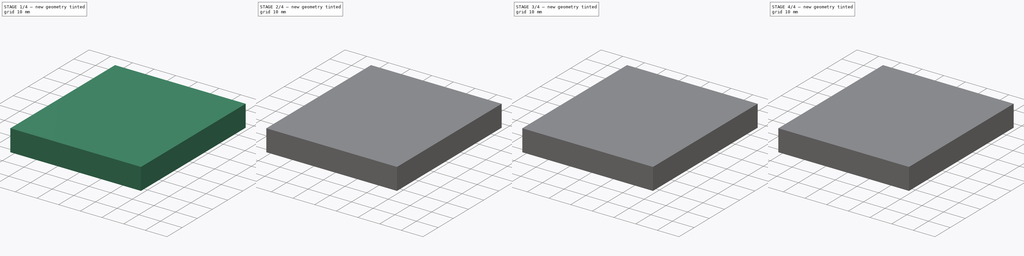
[diagram: build sequence overview — one tinted view per stage of 4, left to right]
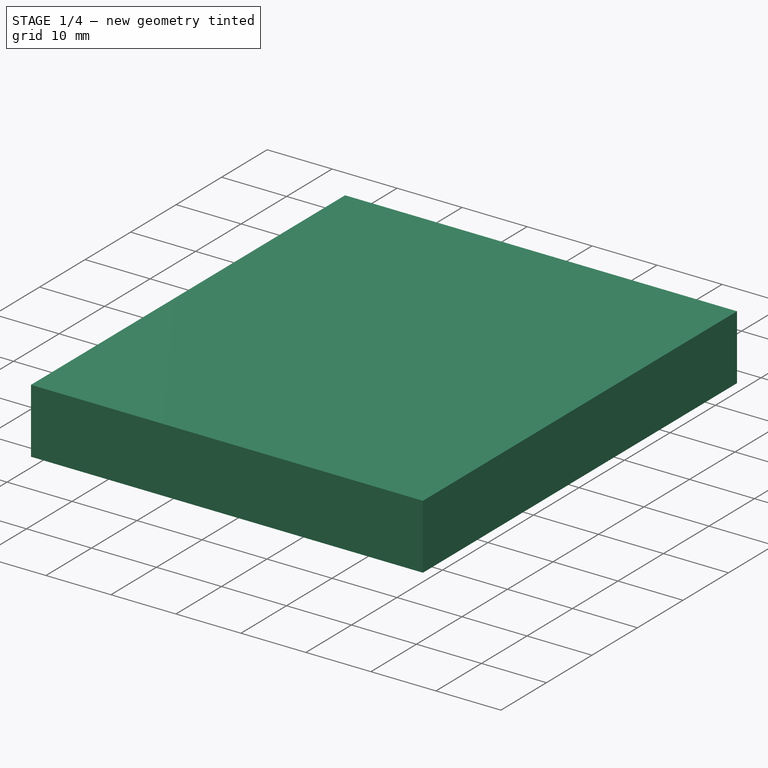
[diagram: stage 1 of 4 — iso view after this stage's code; geometry added in this stage tinted green]
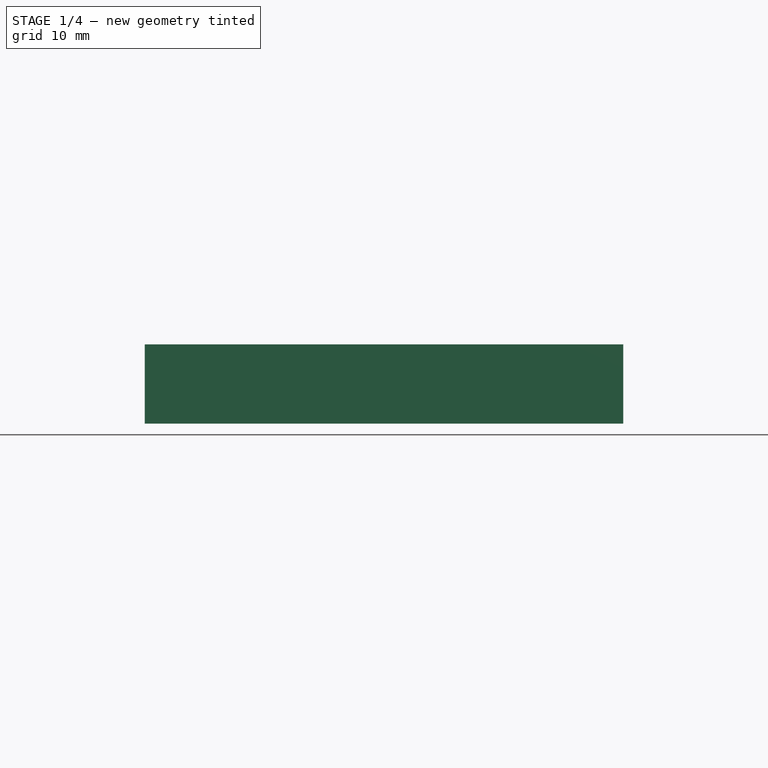
[diagram: stage 1 of 4 — front view after this stage's code; geometry added in this stage tinted green]
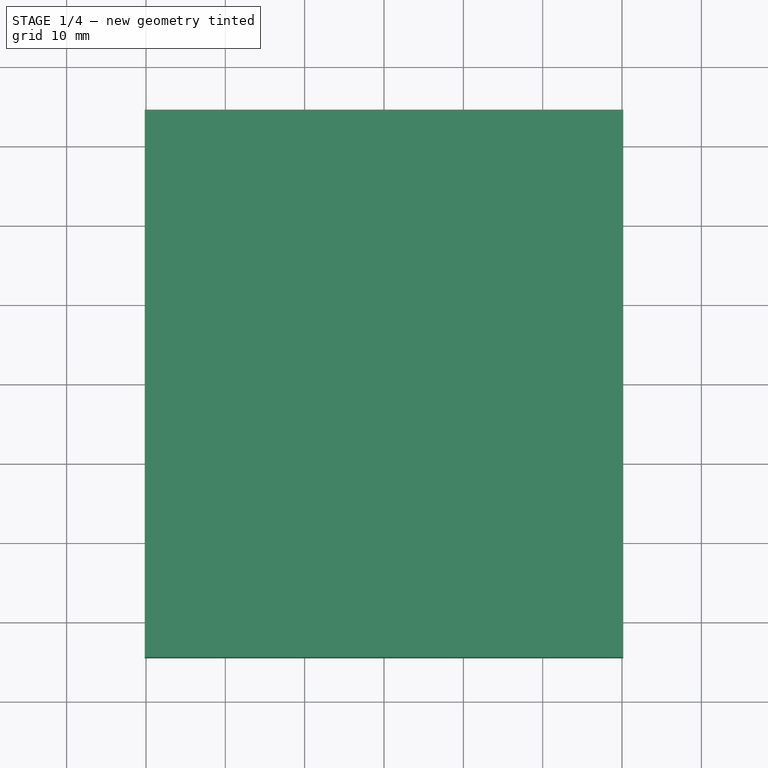
[diagram: stage 1 of 4 — top view after this stage's code; geometry added in this stage tinted green]
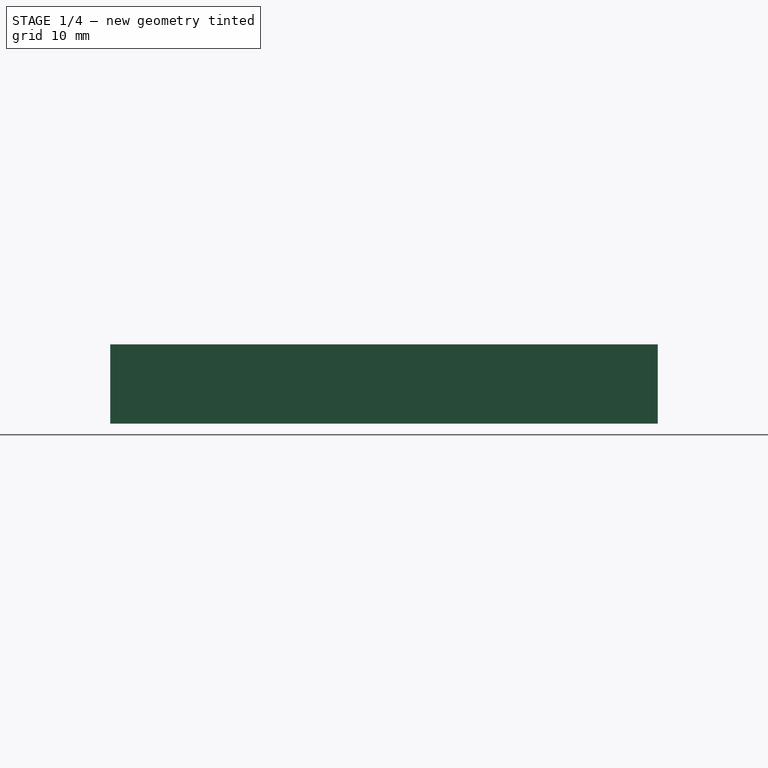
[diagram: stage 1 of 4 — right view after this stage's code; geometry added in this stage tinted green]
FCSTD DOCUMENT  (FreeCAD 0.20R29177 (Git))
Label: Wilkinson Divider
License: All rights reserved
LicenseURL: http://en.wikipedia.org/wiki/All_rights_reserved
objects: Part::Extrusion×12, Sketcher::SketchObject×10, Spreadsheet::Sheet×1, Part::Mirroring×1, Part::Cut×1
note: 24 computed .brp shape members not serialized (recipe doc carries the construction recipe); baked Part::Feature solids carry a one-line shape summary decoded from their .brp

FEATURE [Part::Extrusion] Extrude001  label="input trace"
  Base = -> Sketch001
  Dir = (0,0,1)
  DirMode = 2
  FaceMakerClass = Part::FaceMakerBullseye
  LengthFwd = 0.035
  LengthRev = 0
  Solid = true
  Symmetric = false
FEATURE [Part::Extrusion] Extrude010  label="port in"
  Base = -> Sketch008
  Dir = (0,0,1)
  DirMode = 2
  FaceMakerClass = Part::FaceMakerBullseye
  LengthFwd = 1.57
  LengthRev = 0
  Reversed = true
  Solid = true
  Symmetric = false
  expr: LengthFwd = <<params>>.substrate_height + 2 * 0.035
FEATURE [Sketcher::SketchObject] Sketch009  label="simbox sketch"
  FullyConstrained = true
  expr: Constraints[10] = <<params>>.output_trace_length_2 * 3
  expr: Constraints[9] = <<params>>.wilkinson_radius * 8
  sketch-geometry (4):
    g0: LineSegment StartX=-30.15 StartY=34.5048 StartZ=0 EndX=30.15 EndY=34.5048 EndZ=0
    g1: LineSegment StartX=30.15 StartY=34.5048 StartZ=0 EndX=30.15 EndY=-34.5048 EndZ=0
    g2: LineSegment StartX=30.15 StartY=-34.5048 StartZ=0 EndX=-30.15 EndY=-34.5048 EndZ=0
    g3: LineSegment StartX=-30.15 StartY=-34.5048 StartZ=0 EndX=-30.15 EndY=34.5048 EndZ=0
  constraints (11):
    c: Coincident(g0,g1)
    c: Coincident(g1,g2)
    c: Coincident(g2,g3)
    c: Coincident(g3,g0)
    c: Horizontal(g0)
    c: Horizontal(g2)
    c: Vertical(g1)
    c: Vertical(g3)
    c: Symmetric(g0,g1,g-1)
    c: Distance(g1,g0) = 69.0096
    c: Distance(g0) = 60.3
FEATURE [Part::Extrusion] Extrude011  label="simbox"
  Base = -> Sketch009
  Dir = (0,0,1)
  DirMode = 2
  FaceMakerClass = Part::FaceMakerBullseye
  LengthFwd = 10
  LengthRev = 0
  Solid = true
  Symmetric = true
FEATURE [Part::Extrusion] Extrude012  label="Et dumpbox"
  Base = -> Sketch005
  Dir = (0,0,1)
  DirMode = 2
  FaceMakerClass = Part::FaceMakerBullseye
  LengthFwd = 0.035
  LengthRev = 0
  Solid = true
  Symmetric = false
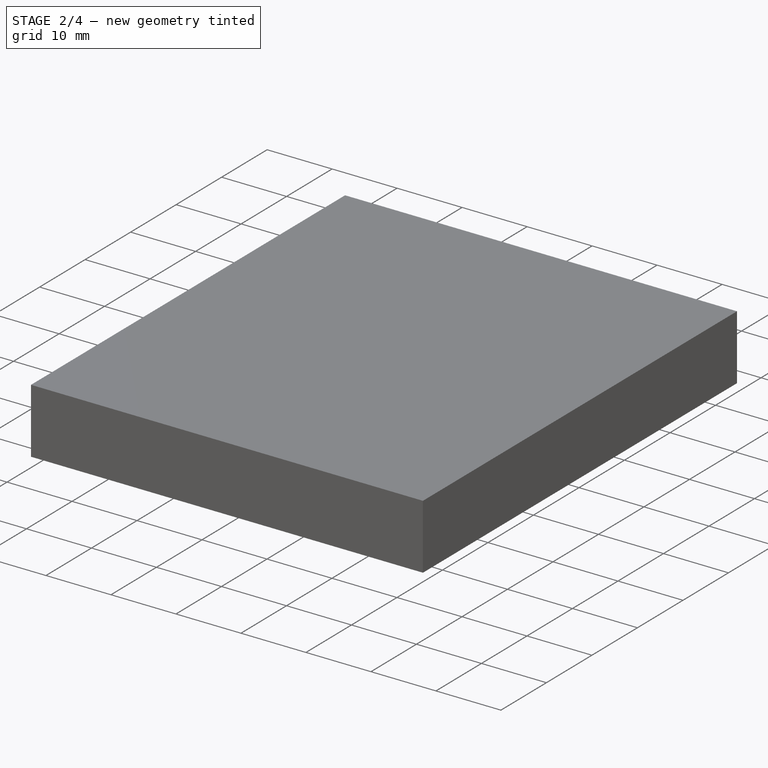
[diagram: stage 2 of 4 — iso view after this stage's code; geometry added in this stage tinted green]
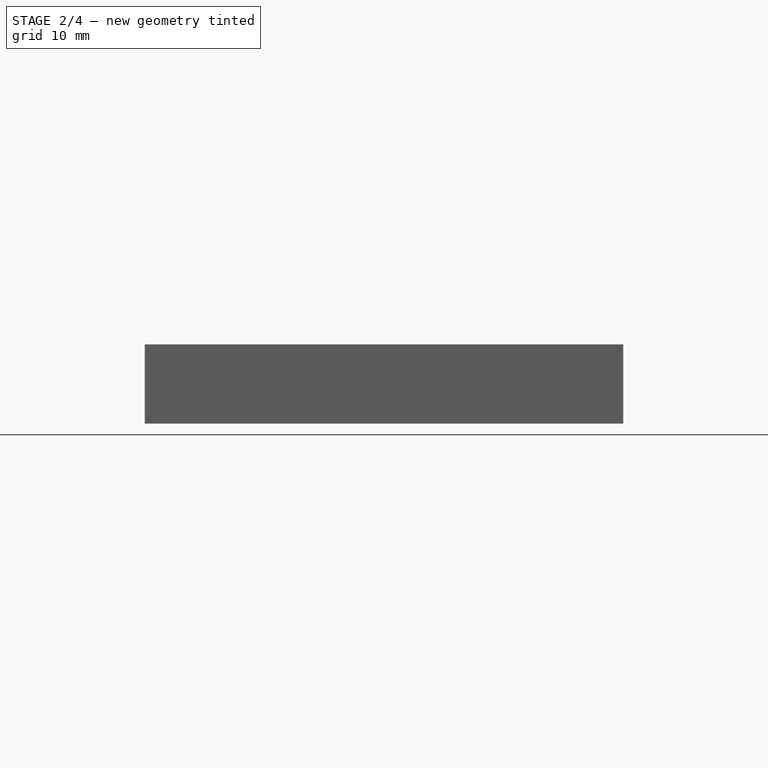
[diagram: stage 2 of 4 — front view after this stage's code; geometry added in this stage tinted green]
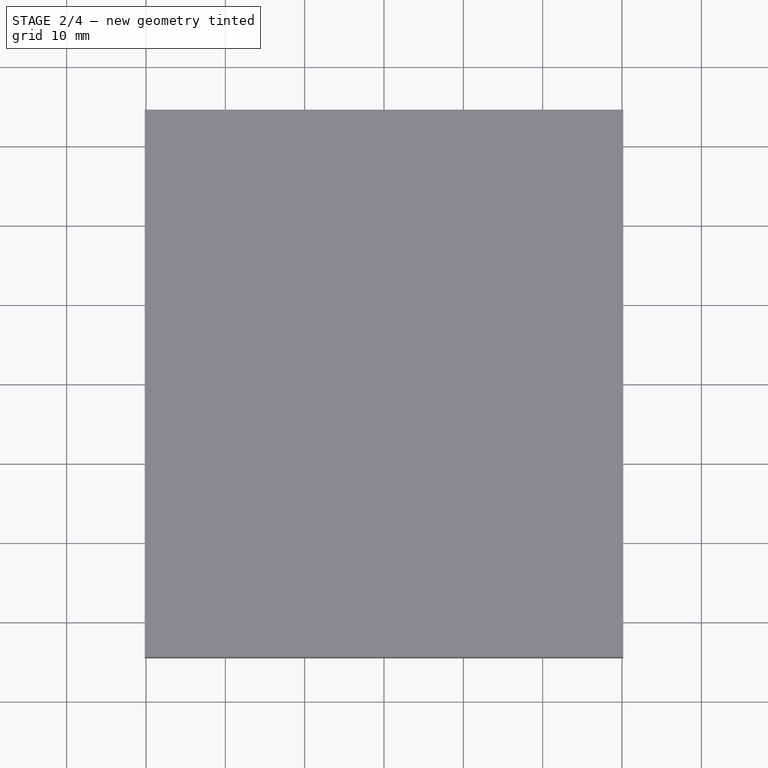
[diagram: stage 2 of 4 — top view after this stage's code; geometry added in this stage tinted green]
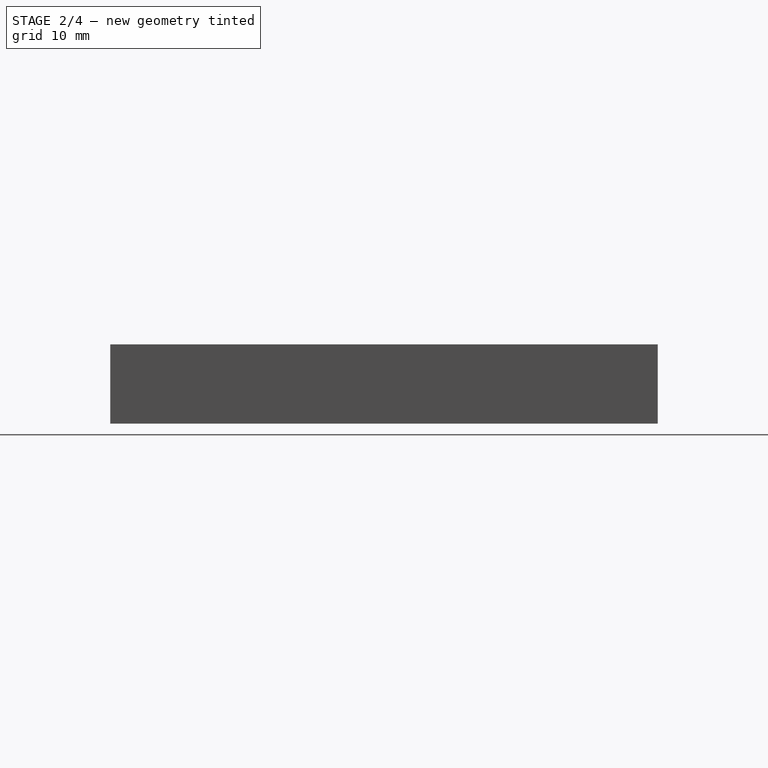
[diagram: stage 2 of 4 — right view after this stage's code; geometry added in this stage tinted green]
FEATURE [Part::Extrusion] Extrude003  label="output trace 1"
  Base = -> Sketch003
  Dir = (0,0,1)
  DirMode = 2
  FaceMakerClass = Part::FaceMakerBullseye
  LengthFwd = 0.035
  LengthRev = 0
  Solid = true
  Symmetric = false
FEATURE [Part::Mirroring] Part__Mirroring  label="output trace 2"
  Base = (0,0,0)
  Normal = (1,0,0)
  Source = -> Extrude003
FEATURE [Part::Extrusion] Extrude009  label="port out 2"
  Base = -> Sketch007
  Dir = (0,0,1)
  DirMode = 2
  FaceMakerClass = Part::FaceMakerBullseye
  LengthFwd = 1.57
  LengthRev = 0
  Reversed = true
  Solid = true
  Symmetric = false
  expr: LengthFwd = <<params>>.substrate_height + 2 * 0.035
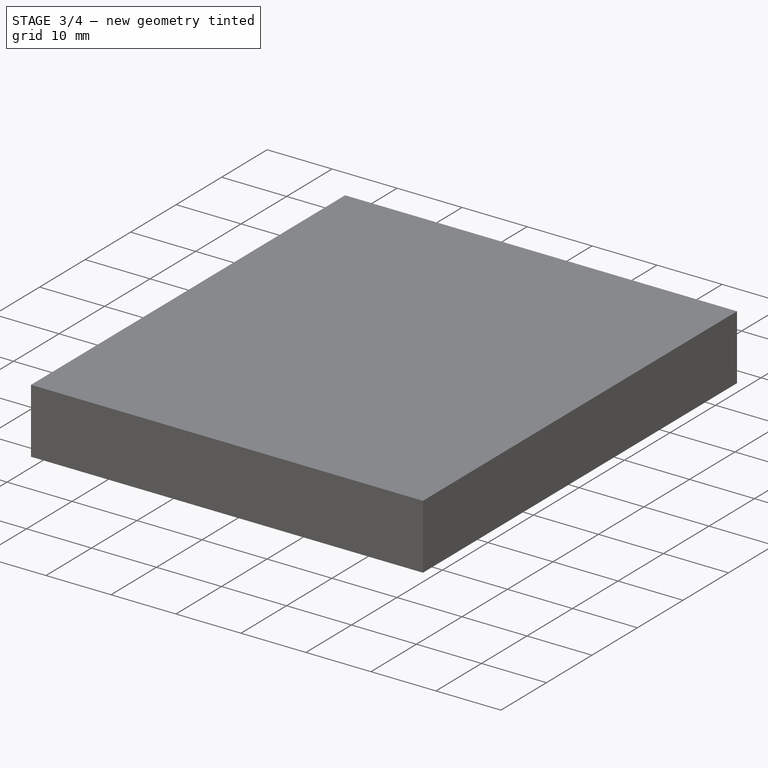
[diagram: stage 3 of 4 — iso view after this stage's code; geometry added in this stage tinted green]
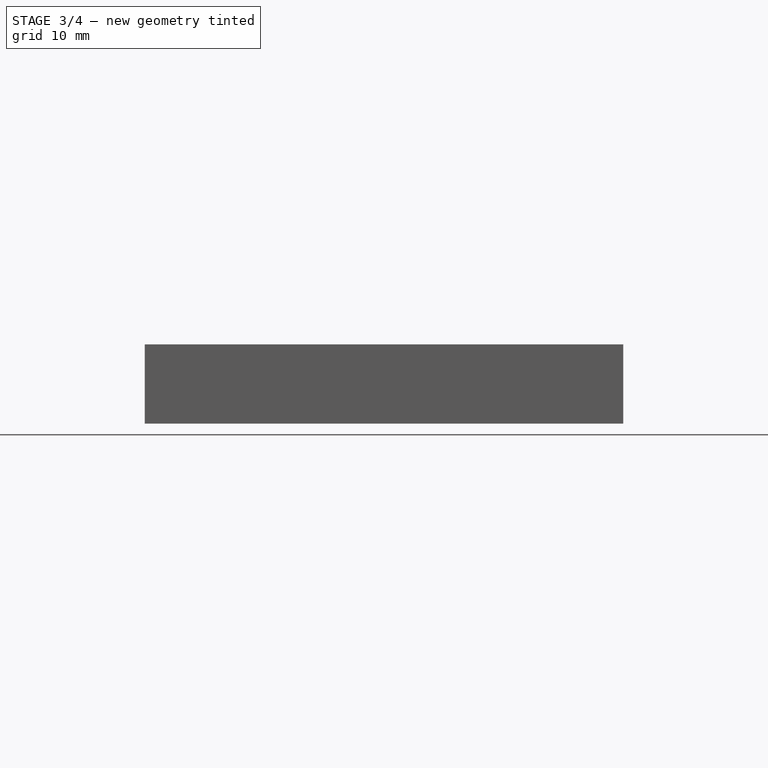
[diagram: stage 3 of 4 — front view after this stage's code; geometry added in this stage tinted green]
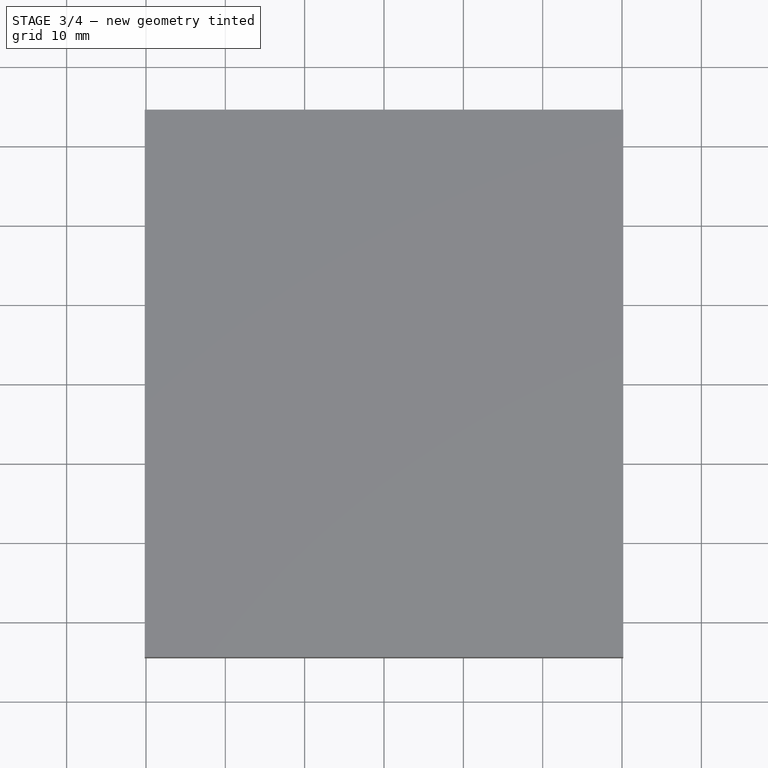
[diagram: stage 3 of 4 — top view after this stage's code; geometry added in this stage tinted green]
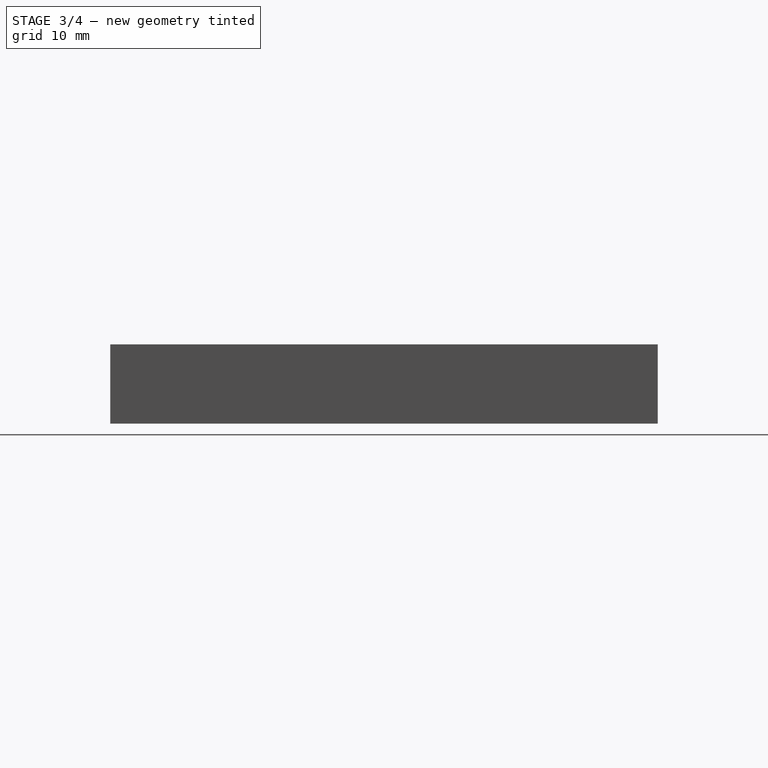
[diagram: stage 3 of 4 — right view after this stage's code; geometry added in this stage tinted green]
FEATURE [Sketcher::SketchObject] Sketch005  label="substrate sketch"
  FullyConstrained = true
  expr: Constraints[10] = <<params>>.wilkinson_radius + <<params>>.output_trace_length_1 + 10
  expr: Constraints[7] = <<params>>.wilkinson_radius + <<params>>.input_trace_length
  expr: Constraints[8] = <<params>>.output_trace_length_2 - <<params>>.resistor_width / 4
  sketch-geometry (4):
    g0: LineSegment StartX=-19.6 StartY=16.6262 StartZ=0 EndX=19.6 EndY=16.6262 EndZ=0
    g1: LineSegment StartX=19.6 StartY=16.6262 StartZ=0 EndX=19.6 EndY=-25.6262 EndZ=0
    g2: LineSegment StartX=19.6 StartY=-25.6262 StartZ=0 EndX=-19.6 EndY=-25.6262 EndZ=0
    g3: LineSegment StartX=-19.6 StartY=-25.6262 StartZ=0 EndX=-19.6 EndY=16.6262 EndZ=0
  constraints (11):
    c: Coincident(g0,g1)
    c: Coincident(g1,g2)
    c: Coincident(g2,g3)
    c: Coincident(g3,g0)
    c: Horizontal(g2)
    c: Vertical(g1)
    c: Vertical(g3)
    c: DistanceY(g-1,g0) = 16.6262
    c: DistanceX(g-2,g0) = 19.6
    c: Symmetric(g0,g0,g-2)
    c: DistanceY(g2,g-1) = 25.6262
FEATURE [Part::Extrusion] Extrude006  label="substrate"
  Base = -> Sketch005
  Dir = (0,0,1)
  DirMode = 2
  FaceMakerClass = Part::FaceMakerBullseye
  LengthFwd = 1.5
  LengthRev = 0
  Reversed = true
  Solid = true
  Symmetric = false
  expr: LengthFwd = <<params>>.substrate_height
FEATURE [Part::Extrusion] Extrude007  label="gnd"
  Base = -> Sketch005
  Dir = (0,0,1)
  DirMode = 2
  FaceMakerClass = Part::FaceMakerBullseye
  LengthFwd = 0.035
  LengthRev = 0
  Placement = pos=(0,0,-1.5) rot=(0,0,1;0rad)
  Reversed = true
  Solid = true
  Symmetric = false
  expr: .Placement.Base.z = -<<params>>.substrate_height
FEATURE [Sketcher::SketchObject] Sketch006  label="port out 1 sketch"
  FullyConstrained = false
  MapMode = 5
  Placement = pos=(0,0,0.035) rot=(0,0,1;0rad)
  Support = -> [Extrude003]
  sketch-geometry (4):
    g0: LineSegment StartX=-19.3854 StartY=-12.9457 StartZ=0 EndX=-19.0732 EndY=-12.9457 EndZ=0
    g1: LineSegment StartX=-19.0732 StartY=-12.9457 StartZ=0 EndX=-19.0732 EndY=-15.5349 EndZ=0
    g2: LineSegment StartX=-19.0732 StartY=-15.5349 StartZ=0 EndX=-19.3854 EndY=-15.5349 EndZ=0
    g3: LineSegment StartX=-19.3854 StartY=-15.5349 StartZ=0 EndX=-19.3854 EndY=-12.9457 EndZ=0
  constraints (8):
    c: Coincident(g0,g1)
    c: Coincident(g1,g2)
    c: Coincident(g2,g3)
    c: Coincident(g3,g0)
    c: Horizontal(g0)
    c: Horizontal(g2)
    c: Vertical(g1)
    c: Vertical(g3)
FEATURE [Sketcher::SketchObject] Sketch007  label="port out 2 sketch"
  FullyConstrained = false
  MapMode = 5
  Placement = pos=(0,0,0.035) rot=(0,0,1;0rad)
  Support = -> [Part__Mirroring]
  sketch-geometry (4):
    g0: LineSegment StartX=19.3863 StartY=-12.8995 StartZ=0 EndX=19.1305 EndY=-12.8995 EndZ=0
    g1: LineSegment StartX=19.1305 StartY=-12.8995 StartZ=0 EndX=19.1305 EndY=-15.5646 EndZ=0
    g2: LineSegment StartX=19.1305 StartY=-15.5646 StartZ=0 EndX=19.3863 EndY=-15.5646 EndZ=0
    g3: LineSegment StartX=19.3863 StartY=-15.5646 StartZ=0 EndX=19.3863 EndY=-12.8995 EndZ=0
  constraints (8):
    c: Coincident(g0,g1)
    c: Coincident(g1,g2)
    c: Coincident(g2,g3)
    c: Coincident(g3,g0)
    c: Horizontal(g0)
    c: Horizontal(g2)
    c: Vertical(g1)
    c: Vertical(g3)
FEATURE [Sketcher::SketchObject] Sketch008  label="port in sketch"
  FullyConstrained = false
  MapMode = 5
  Placement = pos=(0,0,0.035) rot=(0,0,1;0rad)
  Support = -> [Extrude001]
  sketch-geometry (4):
    g0: LineSegment StartX=-1.35472 StartY=16.5381 StartZ=0 EndX=1.26912 EndY=16.5381 EndZ=0
    g1: LineSegment StartX=1.26912 StartY=16.5381 StartZ=0 EndX=1.26912 EndY=16.2411 EndZ=0
    g2: LineSegment StartX=1.26912 StartY=16.2411 StartZ=0 EndX=-1.35472 EndY=16.2411 EndZ=0
    g3: LineSegment StartX=-1.35472 StartY=16.2411 StartZ=0 EndX=-1.35472 EndY=16.5381 EndZ=0
  constraints (8):
    c: Coincident(g0,g1)
    c: Coincident(g1,g2)
    c: Coincident(g2,g3)
    c: Coincident(g3,g0)
    c: Horizontal(g0)
    c: Horizontal(g2)
    c: Vertical(g1)
    c: Vertical(g3)
FEATURE [Part::Extrusion] Extrude008  label="port out 1"
  Base = -> Sketch006
  Dir = (0,0,1)
  DirMode = 2
  FaceMakerClass = Part::FaceMakerBullseye
  LengthFwd = 1.57
  LengthRev = 0
  Reversed = true
  Solid = true
  Symmetric = false
  expr: LengthFwd = <<params>>.substrate_height + 2 * 0.035
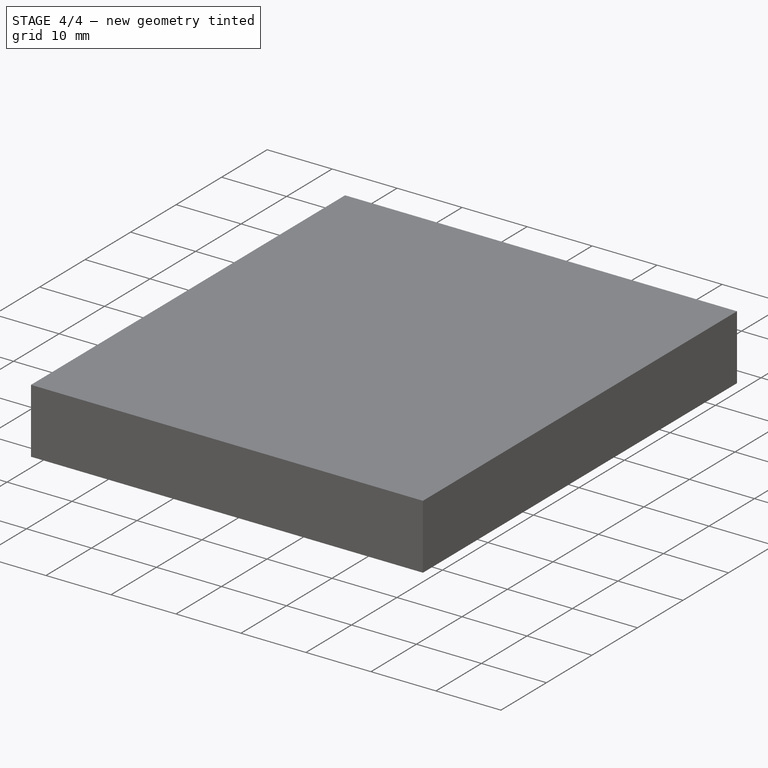
[diagram: stage 4 of 4 — iso view after this stage's code; geometry added in this stage tinted green]
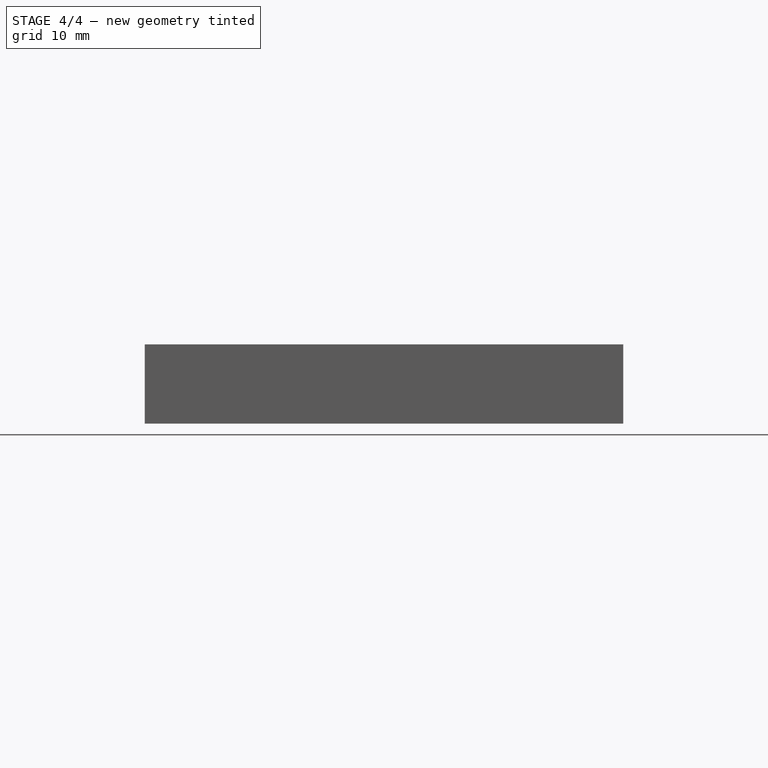
[diagram: stage 4 of 4 — front view after this stage's code; geometry added in this stage tinted green]
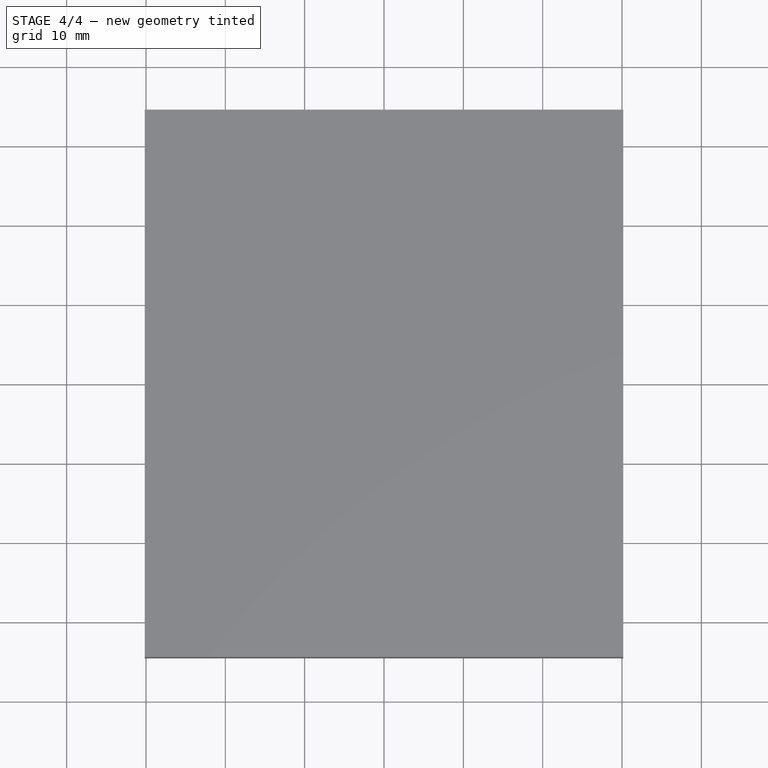
[diagram: stage 4 of 4 — top view after this stage's code; geometry added in this stage tinted green]
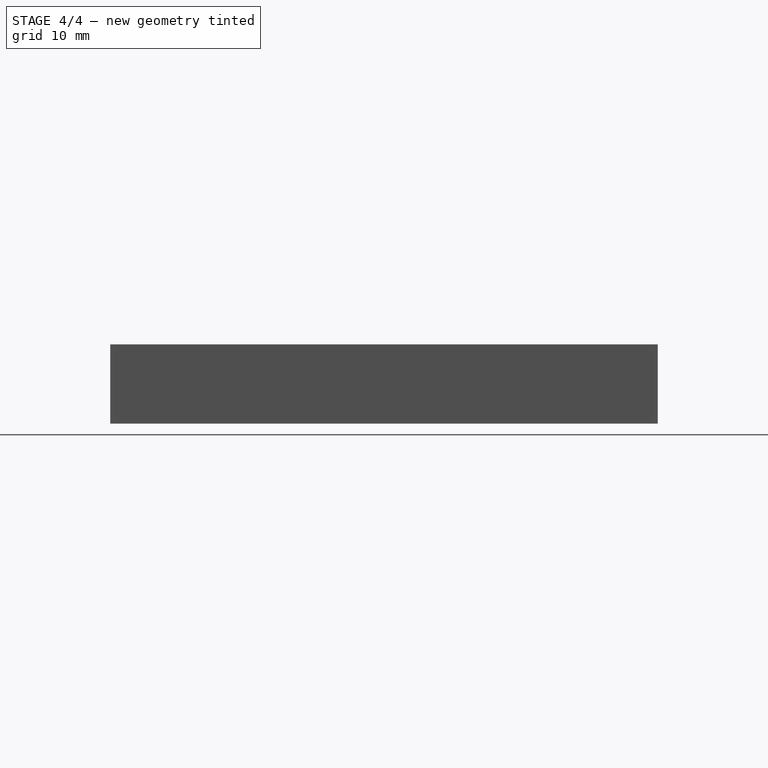
[diagram: stage 4 of 4 — right view after this stage's code; geometry added in this stage tinted green]
FEATURE [Sketcher::SketchObject] Sketch  label="wilkinson sketch"
  FullyConstrained = true
  expr: Constraints[7] = <<params>>.wilkinson_radius
  expr: Constraints[8] = <<params>>.wilkinson_trace_width
  sketch-geometry (5):
    g0: Circle CenterX=0 CenterY=0 CenterZ=0 NormalX=0 NormalY=0 NormalZ=1 AngleXU=0 Radius=7.8662
    g1: Circle CenterX=0 CenterY=0 CenterZ=0 NormalX=0 NormalY=0 NormalZ=1 AngleXU=0 Radius=9.3862
    g2: GeomPoint X=0 Y=7.8662 Z=0
    g3: GeomPoint X=0 Y=9.3862 Z=0
    g4: GeomPoint X=0 Y=8.6262 Z=0
  constraints (9):
    c: Coincident(g0,g-1)
    c: Coincident(g1,g0)
    c: PointOnObject(g2,g0)
    c: PointOnObject(g3,g1)
    c: PointOnObject(g3,g-2)
    c: PointOnObject(g2,g-2)
    c: Symmetric(g2,g3,g4)
    c: Distance(g4,g0) = 8.6262
    c: Distance(g3,g2) = 1.52
FEATURE [Spreadsheet::Sheet] Spreadsheet  label="params"
  cells = A2=user specified; B2=value; A3=wilkinson_trace_width; B3(wilkinson_trace_width)=1.52; D3=eps_r; E3(eps_r)=4.5; A4=input_trace_width; B4(input_trace_width)=2.82; D4=f; E4(f)=1500000000; A5=input_trace_length; B5(input_trace_length)=8; D5=lamda4; E5(lambda4)=27.1; A6=resistor_width; B6(resistor_width)=2; D6=R1; E6=403; A7=output_trace_width; B7(output_trace_width)=2.82; A8=output_trace_length_1; B8(output_trace_length_1)=7; A9=substrate_height; B9(substrate_height)=1.5; A13=calculated; B13=value; A14=output_trace_length_2; B14(output_trace_length_2)==lambda4 - output_trace_length_1; A15=wilkinson_radius; B15(wilkinson_radius)==lambda4 / pi
FEATURE [Sketcher::SketchObject] Sketch001  label="input trace sketch"
  FullyConstrained = true
  expr: Constraints[10] = <<params>>.input_trace_width
  expr: Constraints[11] = <<params>>.input_trace_length
  expr: Constraints[12] = <<params>>.wilkinson_radius
  sketch-geometry (5):
    g0: GeomPoint X=0 Y=16.6262 Z=0
    g1: LineSegment StartX=-1.41 StartY=8.6262 StartZ=0 EndX=1.41 EndY=8.6262 EndZ=0
    g2: LineSegment StartX=1.41 StartY=8.6262 StartZ=0 EndX=1.41 EndY=16.6262 EndZ=0
    g3: LineSegment StartX=1.41 StartY=16.6262 StartZ=0 EndX=-1.41 EndY=16.6262 EndZ=0
    g4: LineSegment StartX=-1.41 StartY=16.6262 StartZ=0 EndX=-1.41 EndY=8.6262 EndZ=0
  constraints (13):
    c: PointOnObject(g0,g-2)
    c: Coincident(g1,g2)
    c: Coincident(g2,g3)
    c: Coincident(g3,g4)
    c: Coincident(g4,g1)
    c: Horizontal(g1)
    c: Horizontal(g3)
    c: Vertical(g2)
    c: Vertical(g4)
    c: Symmetric(g3,g2,g0)
    c: Distance(g1) = 2.82
    c: Distance(g2) = 8
    c: DistanceY(g-1,g1) = 8.6262
FEATURE [Sketcher::SketchObject] Sketch002  label="resistor gap sketch"
  FullyConstrained = true
  expr: Constraints[11] = <<params>>.resistor_width - 0.2
  expr: Constraints[12] = <<params>>.wilkinson_trace_width + 0.5
  expr: Constraints[1] = <<params>>.wilkinson_radius
  sketch-geometry (5):
    g0: GeomPoint X=0 Y=-8.6262 Z=0
    g1: LineSegment StartX=-0.9 StartY=-7.6162 StartZ=0 EndX=0.9 EndY=-7.6162 EndZ=0
    g2: LineSegment StartX=0.9 StartY=-7.6162 StartZ=0 EndX=0.9 EndY=-9.6362 EndZ=0
    g3: LineSegment StartX=0.9 StartY=-9.6362 StartZ=0 EndX=-0.9 EndY=-9.6362 EndZ=0
    g4: LineSegment StartX=-0.9 StartY=-9.6362 StartZ=0 EndX=-0.9 EndY=-7.6162 EndZ=0
  constraints (13):
    c: PointOnObject(g0,g-2)
    c: Distance(g-1,g0) = 8.6262
    c: Coincident(g1,g2)
    c: Coincident(g2,g3)
    c: Coincident(g3,g4)
    c: Coincident(g4,g1)
    c: Horizontal(g1)
    c: Horizontal(g3)
    c: Vertical(g2)
    c: Vertical(g4)
    c: Symmetric(g1,g2,g0)
    c: Distance(g1) = 1.8
    c: Distance(g4) = 2.02
FEATURE [Sketcher::SketchObject] Sketch003  label="output trace sketch 1"
  FullyConstrained = true
  expr: Constraints[16] = <<params>>.output_trace_width
  expr: Constraints[17] = <<params>>.output_trace_length_2 - <<params>>.output_trace_width / 2 - 0.2
  expr: Constraints[18] = <<params>>.output_trace_length_1 - <<params>>.output_trace_width
  expr: Constraints[19] = <<params>>.output_trace_width
  expr: Constraints[1] = <<params>>.wilkinson_radius
  expr: Constraints[20] = <<params>>.resistor_width / 2
  sketch-geometry (8):
    g0: GeomPoint X=0 Y=-8.6262 Z=0
    g1: GeomPoint X=-1 Y=-8.6262 Z=0
    g2: LineSegment StartX=-1 StartY=-8.6262 StartZ=0 EndX=-1 EndY=-15.6262 EndZ=0
    g3: LineSegment StartX=-1 StartY=-15.6262 StartZ=0 EndX=-19.49 EndY=-15.6262 EndZ=0
    g4: LineSegment StartX=-19.49 StartY=-15.6262 StartZ=0 EndX=-19.49 EndY=-12.8062 EndZ=0
    g5: LineSegment StartX=-3.82 StartY=-8.6262 StartZ=0 EndX=-1 EndY=-8.6262 EndZ=0
    g6: LineSegment StartX=-19.49 StartY=-12.8062 StartZ=0 EndX=-3.82 EndY=-12.8062 EndZ=0
    g7: LineSegment StartX=-3.82 StartY=-8.6262 StartZ=0 EndX=-3.82 EndY=-12.8062 EndZ=0
  constraints (21):
    c: PointOnObject(g0,g-2)
    c: Distance(g-1,g0) = 8.6262
    c: Horizontal(g1,g0)
    c: Coincident(g2,g1)
    c: Vertical(g2)
    c: Coincident(g3,g2)
    c: Horizontal(g3)
    c: Coincident(g4,g3)
    c: Vertical(g4)
    c: Horizontal(g5,g2)
    c: Coincident(g5,g2)
    c: Coincident(g6,g4)
    c: Horizontal(g6)
    c: Coincident(g7,g5)
    c: Coincident(g7,g6)
    c: Parallel(g7,g-2)
    c: Distance(g5) = 2.82
    c: Distance(g3) = 18.49
    c: DistanceY(g4,g5) = 4.18
    c: Distance(g4) = 2.82
    c: DistanceX(g2,g0) = 1
FEATURE [Part::Extrusion] Extrude  label="wilkinson"
  Base = -> Sketch
  Dir = (0,0,1)
  DirMode = 2
  FaceMakerClass = Part::FaceMakerBullseye
  LengthFwd = 0.035
  LengthRev = 0
  Solid = true
  Symmetric = false
FEATURE [Part::Extrusion] Extrude004  label="resistor gap"
  Base = -> Sketch002
  Dir = (0,0,1)
  DirMode = 2
  FaceMakerClass = Part::FaceMakerBullseye
  LengthFwd = 0.035
  LengthRev = 0
  Solid = true
  Symmetric = false
FEATURE [Part::Cut] Cut  label="wilkinson with gap"
  Base = -> Extrude
  Tool = -> Extrude004
FEATURE [Sketcher::SketchObject] Sketch004  label="resistor sketch"
  FullyConstrained = true
  expr: Constraints[11] = <<params>>.wilkinson_trace_width
  expr: Constraints[12] = <<params>>.resistor_width + 0.4
  expr: Constraints[1] = <<params>>.wilkinson_radius
  sketch-geometry (5):
    g0: GeomPoint X=0 Y=-8.6262 Z=0
    g1: LineSegment StartX=-1.2 StartY=-7.8662 StartZ=0 EndX=1.2 EndY=-7.8662 EndZ=0
    g2: LineSegment StartX=1.2 StartY=-7.8662 StartZ=0 EndX=1.2 EndY=-9.3862 EndZ=0
    g3: LineSegment StartX=1.2 StartY=-9.3862 StartZ=0 EndX=-1.2 EndY=-9.3862 EndZ=0
    g4: LineSegment StartX=-1.2 StartY=-9.3862 StartZ=0 EndX=-1.2 EndY=-7.8662 EndZ=0
  constraints (13):
    c: PointOnObject(g0,g-2)
    c: Distance(g-1,g0) = 8.6262
    c: Coincident(g1,g2)
    c: Coincident(g2,g3)
    c: Coincident(g3,g4)
    c: Coincident(g4,g1)
    c: Horizontal(g1)
    c: Horizontal(g3)
    c: Vertical(g2)
    c: Vertical(g4)
    c: Symmetric(g1,g2,g0)
    c: Distance(g4) = 1.52
    c: Distance(g1) = 2.4
FEATURE [Part::Extrusion] Extrude005  label="resistor"
  Base = -> Sketch004
  Dir = (0,0,1)
  DirMode = 2
  FaceMakerClass = Part::FaceMakerBullseye
  LengthFwd = 2
  LengthRev = 0
  Solid = true
  Symmetric = false
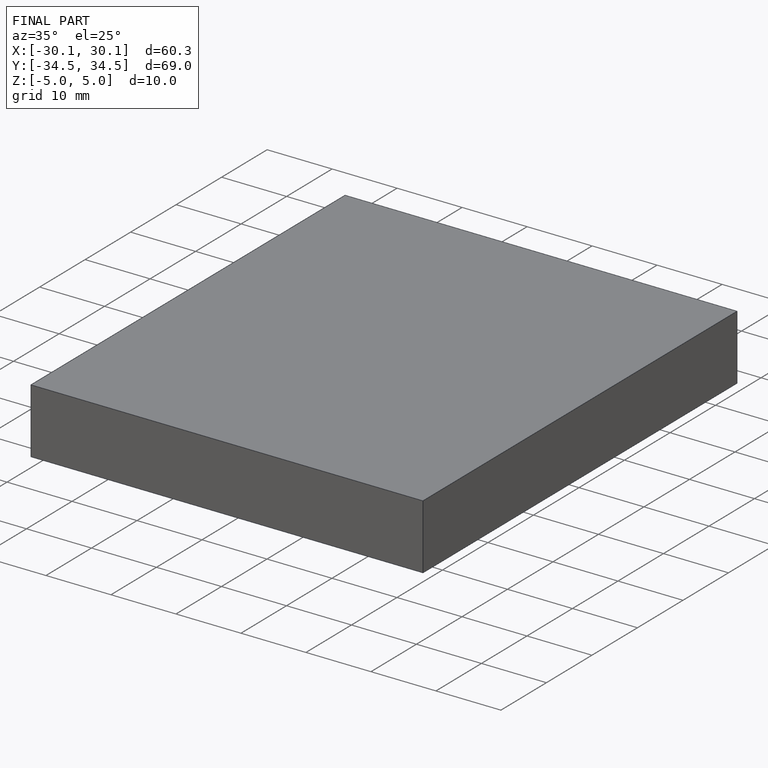
[diagram: finished part — iso view with bounding-box wireframe]
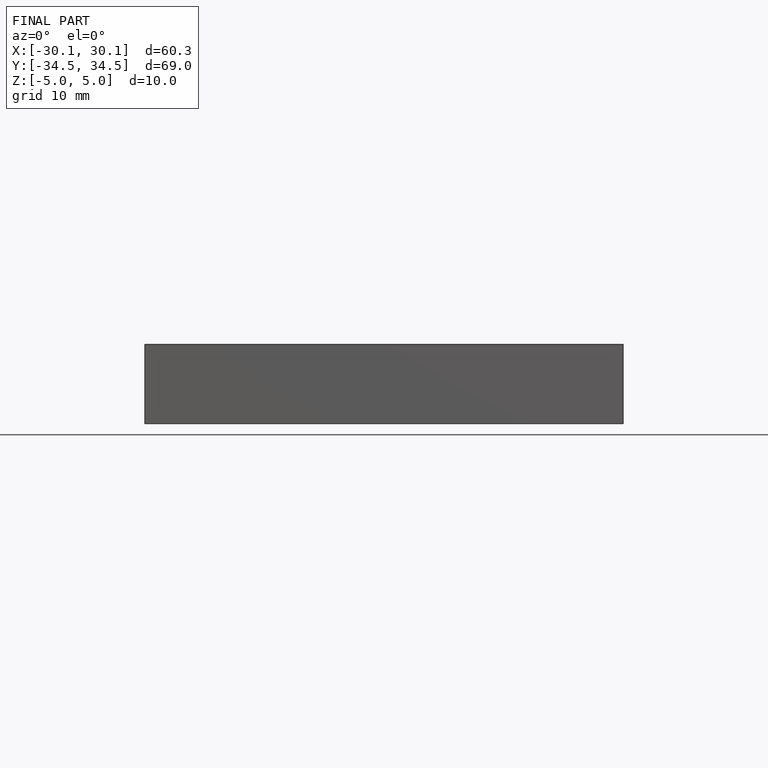
[diagram: finished part — front view with bounding-box wireframe]
